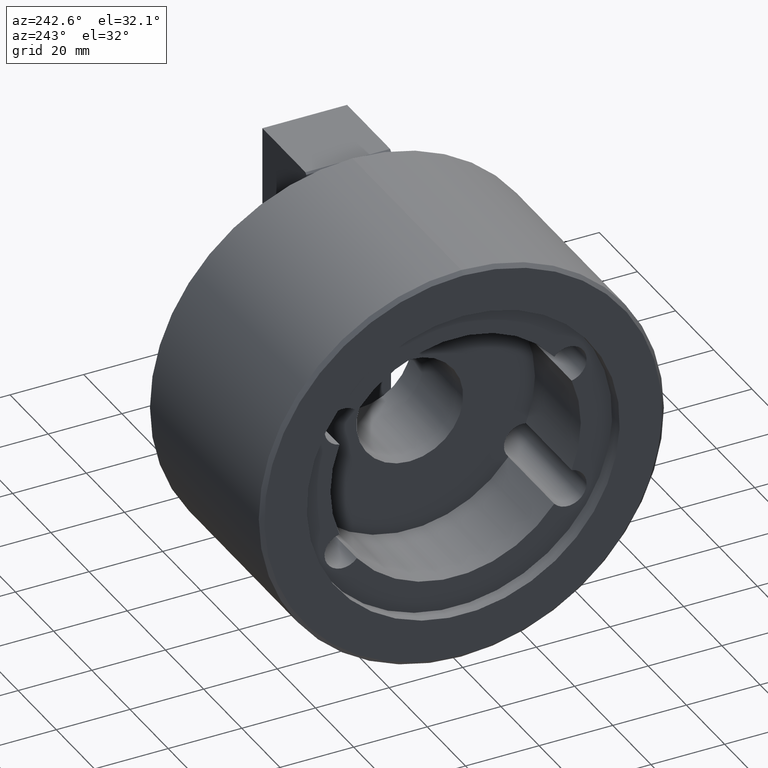
[diagram: clean part render]
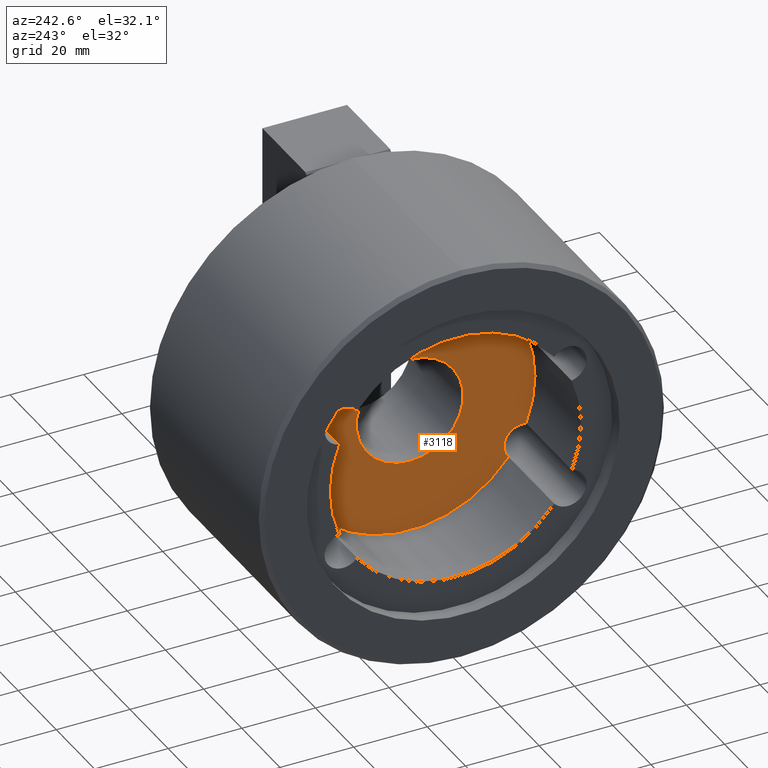
[diagram: same view with one face highlighted and labeled with its STEP entity id]
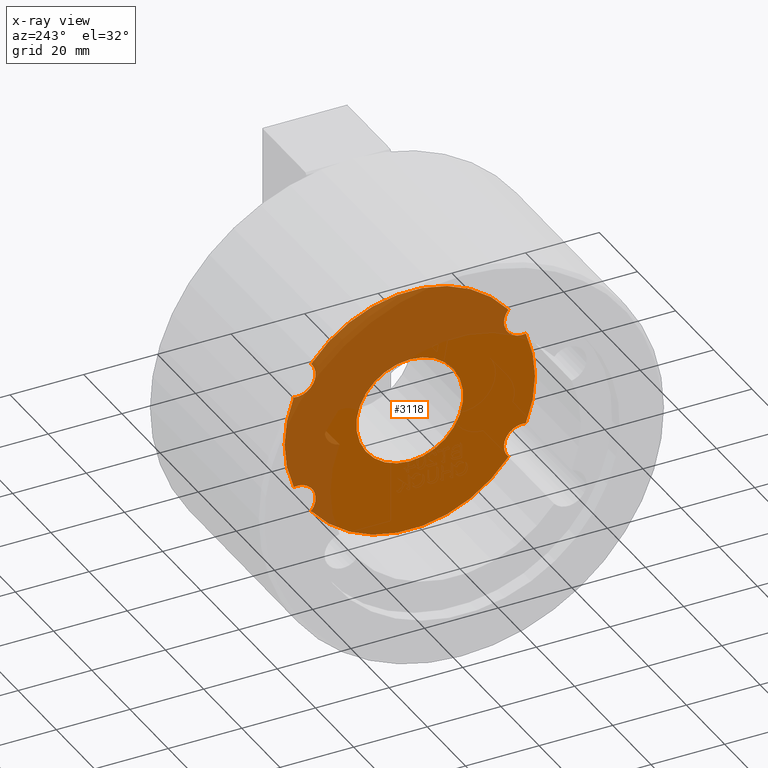
[diagram: x-ray of the same camera — body ghosted, the highlighted face saturated]
A machine part, auxiliary view. The second image highlights one B-rep face of the part: STEP entity #3118.
The next image is the same camera in x-ray: the body ghosted, the highlighted face saturated — about 44% of this face is hidden behind the body in this view.
In plain terms, the highlighted planar face has unit normal (-1, 0, -0).
Its self-contained STEP definition (entity closure, byte-faithful):
#660=PLANE('',#4490);
#973=ORIENTED_EDGE('',*,*,#1754,.F.);
#974=ORIENTED_EDGE('',*,*,#1756,.T.);
#975=ORIENTED_EDGE('',*,*,#1711,.F.);
#976=ORIENTED_EDGE('',*,*,#1746,.T.);
#977=ORIENTED_EDGE('',*,*,#1705,.F.);
#978=ORIENTED_EDGE('',*,*,#1760,.T.);
#979=ORIENTED_EDGE('',*,*,#1761,.F.);
#980=ORIENTED_EDGE('',*,*,#1762,.T.);
#981=ORIENTED_EDGE('',*,*,#1763,.F.);
#1705=EDGE_CURVE('',#2125,#2126,#2396,.T.);
#1711=EDGE_CURVE('',#2131,#2132,#2400,.T.);
#1746=EDGE_CURVE('',#2131,#2126,#2429,.T.);
#1754=EDGE_CURVE('',#2166,#2166,#2437,.T.);
#1756=EDGE_CURVE('',#2168,#2132,#2439,.T.);
#1760=EDGE_CURVE('',#2125,#2170,#2441,.T.);
#1761=EDGE_CURVE('',#2171,#2170,#2442,.T.);
#1762=EDGE_CURVE('',#2171,#2172,#2443,.T.);
#1763=EDGE_CURVE('',#2168,#2172,#2444,.T.);
#2125=VERTEX_POINT('',#5755);
#2126=VERTEX_POINT('',#5756);
#2131=VERTEX_POINT('',#5770);
#2132=VERTEX_POINT('',#5771);
#2166=VERTEX_POINT('',#5876);
#2168=VERTEX_POINT('',#5881);
#2170=VERTEX_POINT('',#5887);
#2171=VERTEX_POINT('',#5891);
#2172=VERTEX_POINT('',#5893);
#2396=CIRCLE('',#4425,5.);
#2400=CIRCLE('',#4432,5.);
#2429=CIRCLE('',#4472,34.);
#2437=CIRCLE('',#4483,14.5);
#2439=CIRCLE('',#4486,34.);
#2441=CIRCLE('',#4489,34.);
#2442=CIRCLE('',#4491,5.);
#2443=CIRCLE('',#4492,34.);
#2444=CIRCLE('',#4493,5.);
#2594=EDGE_LOOP('',(#973));
#2595=EDGE_LOOP('',(#974,#975,#976,#977,#978,#979,#980,#981));
#2852=FACE_BOUND('',#2594,.T.);
#2853=FACE_BOUND('',#2595,.T.);
#3118=ADVANCED_FACE('',(#2852,#2853),#660,.T.);
#4425=AXIS2_PLACEMENT_3D('',#5754,#4859,#4860);
#4432=AXIS2_PLACEMENT_3D('',#5769,#4875,#4876);
#4472=AXIS2_PLACEMENT_3D('',#5857,#4958,#4959);
#4483=AXIS2_PLACEMENT_3D('',#5875,#4980,#4981);
#4486=AXIS2_PLACEMENT_3D('',#5880,#4986,#4987);
#4489=AXIS2_PLACEMENT_3D('',#5888,#4994,#4995);
#4490=AXIS2_PLACEMENT_3D('',#5889,#4996,#4997);
#4491=AXIS2_PLACEMENT_3D('',#5890,#4998,#4999);
#4492=AXIS2_PLACEMENT_3D('',#5892,#5000,#5001);
#4493=AXIS2_PLACEMENT_3D('',#5894,#5002,#5003);
#4859=DIRECTION('',(-1.,1.94469227433161E-64,-1.28379282215539E-32));
#4860=DIRECTION('',(1.28379282215539E-32,-1.22460635382238E-16,-1.));
#4875=DIRECTION('',(-1.,1.94469227433161E-64,-1.28379282215539E-32));
#4876=DIRECTION('',(1.28379282215539E-32,-1.22460635382238E-16,-1.));
#4958=DIRECTION('',(-1.,0.,-1.28379282215539E-32));
#4959=DIRECTION('',(-1.28379282215539E-32,0.,1.));
#4980=DIRECTION('',(-1.,0.,-1.28379282215539E-32));
#4981=DIRECTION('',(-1.28379282215539E-32,0.,1.));
#4986=DIRECTION('',(-1.,0.,-1.28379282215539E-32));
#4987=DIRECTION('',(-1.28379282215539E-32,0.,1.));
#4994=DIRECTION('',(-1.,0.,-1.28379282215539E-32));
#4995=DIRECTION('',(-1.28379282215539E-32,0.,1.));
#4996=DIRECTION('',(-1.,0.,-1.28379282215539E-32));
#4997=DIRECTION('',(-1.28379282215539E-32,0.,1.));
#4998=DIRECTION('',(-1.,0.,-1.28379282215539E-32));
#4999=DIRECTION('',(-1.28379282215539E-32,0.,1.));
#5000=DIRECTION('',(-1.,0.,-1.28379282215539E-32));
#5001=DIRECTION('',(-1.28379282215539E-32,0.,1.));
#5002=DIRECTION('',(-1.,0.,-1.28379282215539E-32));
#5003=DIRECTION('',(-1.28379282215539E-32,0.,1.));
#5754=CARTESIAN_POINT('',(-32.2262345679012,-30.5706967535906,17.65));
#5755=CARTESIAN_POINT('',(-32.2262345679012,-26.7955330314281,20.9284354303337));
#5756=CARTESIAN_POINT('',(-32.2262345679012,-31.5223232598454,12.7413945979949));
#5769=CARTESIAN_POINT('',(-32.2262345679012,-30.5706967535907,-17.65));
#5770=CARTESIAN_POINT('',(-32.2262345679012,-31.5223232598454,-12.7413945979949));
#5771=CARTESIAN_POINT('',(-32.2262345679012,-26.7955330314281,-20.9284354303337));
#5857=CARTESIAN_POINT('',(-32.2262345679012,0.,-1.18409006398857E-30));
#5875=CARTESIAN_POINT('',(-32.2262345679012,0.,-1.18409006398857E-30));
#5876=CARTESIAN_POINT('',(-32.2262345679012,0.,14.5));
#5880=CARTESIAN_POINT('',(-32.2262345679012,0.,-1.18409006398857E-30));
#5881=CARTESIAN_POINT('',(-32.2262345679012,26.7955330314281,-20.9284354303337));
#5887=CARTESIAN_POINT('',(-32.2262345679012,26.7955330314281,20.9284354303337));
#5888=CARTESIAN_POINT('',(-32.2262345679012,0.,-1.18409006398857E-30));
#5889=CARTESIAN_POINT('',(-32.2262345679012,0.,34.));
#5890=CARTESIAN_POINT('',(-32.2262345679012,30.5706967535906,17.65));
#5891=CARTESIAN_POINT('',(-32.2262345679012,31.5223232598454,12.7413945979949));
#5892=CARTESIAN_POINT('',(-32.2262345679012,0.,-1.18409006398857E-30));
#5893=CARTESIAN_POINT('',(-32.2262345679012,31.5223232598454,-12.7413945979949));
#5894=CARTESIAN_POINT('',(-32.2262345679012,30.5706967535907,-17.65));